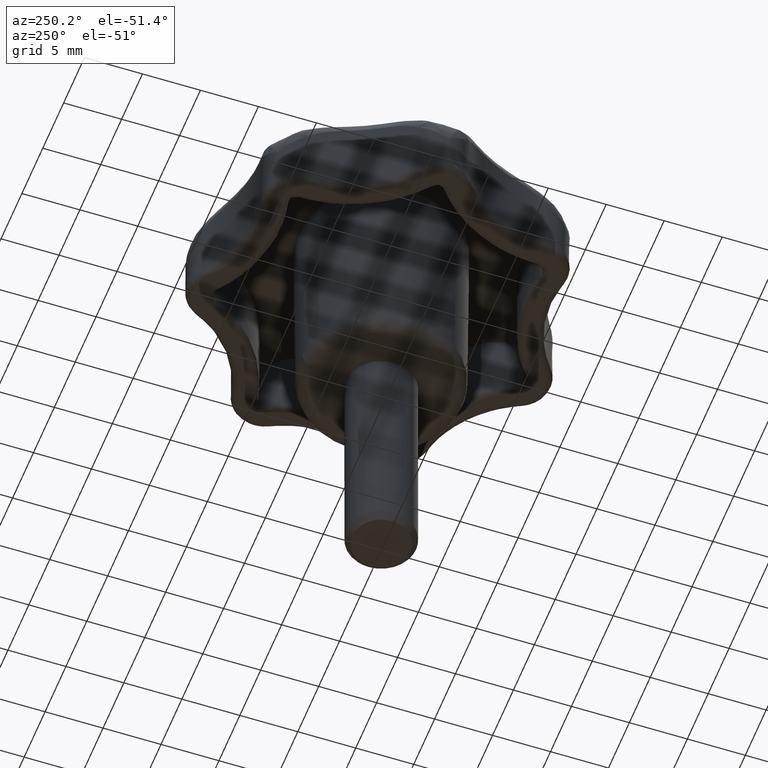
[diagram: clean part render]
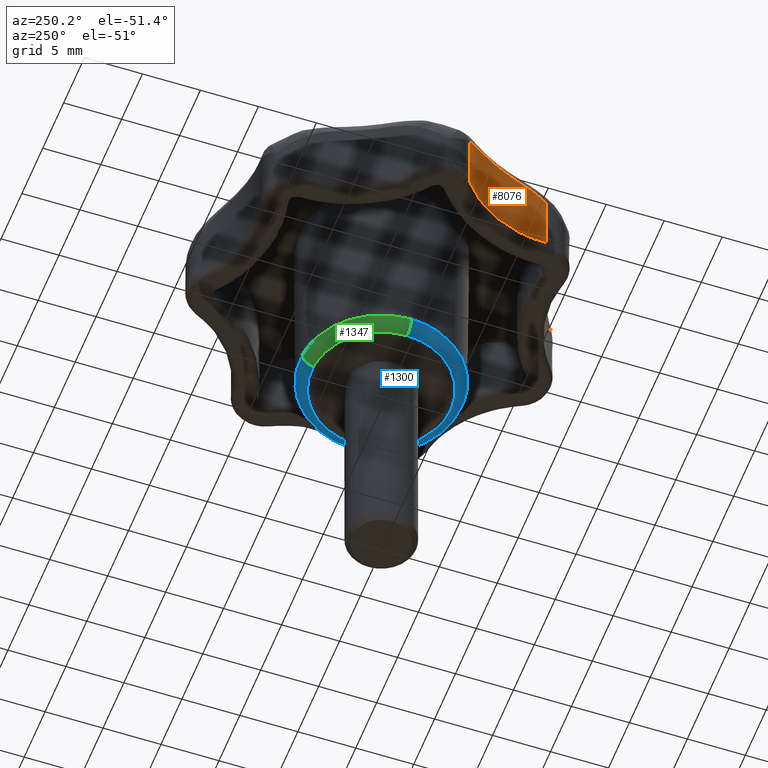
[diagram: same view with three faces highlighted in distinct colors, each labeled with its STEP entity id]
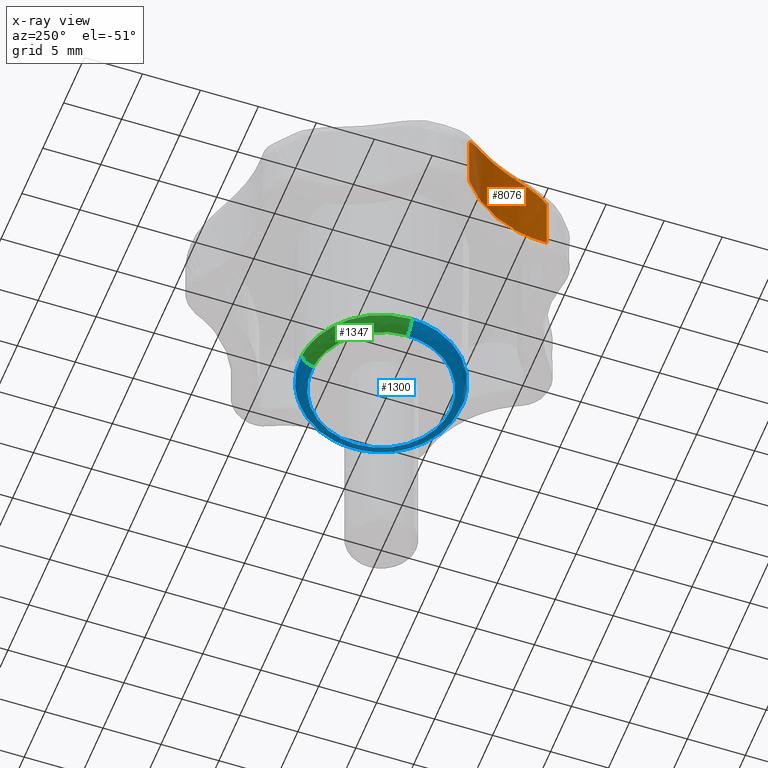
[diagram: x-ray of the same camera — body ghosted, the three highlighted faces saturated]
A machine part, auxiliary view with three faces highlighted in distinct colors.
The next image is the same camera in x-ray (body ghosted, the three faces saturated) — at least one of them is partly hidden behind the body in this view.
Their STEP definitions:

[orange] entity #8076 — the highlighted face is a freeform B-spline surface patch.
#3306=CARTESIAN_POINT('',(-11.029745739279459,-10.277883333098179,10.500000000000000));
#3307=VERTEX_POINT('',#3306);
#3431=CARTESIAN_POINT('',(-14.912507168994660,-2.215246249358240,10.500000000000000));
#3432=VERTEX_POINT('',#3431);
#3459=CARTESIAN_POINT('',(-14.912507168994660,-2.215246249358240,10.500000000000000));
#3460=CARTESIAN_POINT('',(-14.396320414952269,-2.614170561313141,10.500000000000000));
#3461=CARTESIAN_POINT('',(-13.601517495517729,-3.363703587868690,10.500000000000020));
#3462=CARTESIAN_POINT('',(-12.734983654140621,-4.499460412496485,10.499999999999959));
#3463=CARTESIAN_POINT('',(-12.030950182632040,-5.685190996557685,10.500000000000030));
#3464=CARTESIAN_POINT('',(-11.462219906707610,-7.051464885467566,10.500000000000069));
#3465=CARTESIAN_POINT('',(-11.090618001339569,-8.682122145656415,10.499999999999909));
#3466=CARTESIAN_POINT('',(-11.021680565799111,-9.746386973623885,10.500000000000099));
#3467=CARTESIAN_POINT('',(-11.029745739279459,-10.277883333098179,10.500000000000000));
#3468=B_SPLINE_CURVE_WITH_KNOTS('',3,(#3459,#3460,#3461,#3462,#3463,#3464,#3465,#3466,#3467),.UNSPECIFIED.,.F.,.U.,(4,1,1,1,1,1,4),(9.549217E-009,1.957097300897921,3.261831782556425,4.276623781948274,6.088744621064356,7.683423887059954,9.278093574410297),.UNSPECIFIED.);
#3469=EDGE_CURVE('',#3432,#3307,#3468,.T.);
#6943=CARTESIAN_POINT('',(-11.029745739279459,-10.277883333098179,15.546571991775100));
#6944=VERTEX_POINT('',#6943);
#7152=CARTESIAN_POINT('',(-14.912507168994660,-2.215246249358240,15.546571280850349));
#7153=VERTEX_POINT('',#7152);
#7164=CARTESIAN_POINT('',(-11.029745739279459,-10.277883333098179,15.546571991775100));
#7165=CARTESIAN_POINT('',(-11.028830874795490,-10.217319835432690,15.636566274154969));
#7166=CARTESIAN_POINT('',(-11.028393662594320,-10.151958221557029,15.723255099985691));
#7167=CARTESIAN_POINT('',(-11.029015073441309,-10.012566359798161,15.889006045202169));
#7168=CARTESIAN_POINT('',(-11.030070686234220,-9.939093129578540,15.967443842733029));
#7169=CARTESIAN_POINT('',(-11.036191792207800,-9.707997718288679,16.190172051211039));
#7170=CARTESIAN_POINT('',(-11.044198905737201,-9.539723701172090,16.321905740170781));
#7171=CARTESIAN_POINT('',(-11.065161153663970,-9.267740749330180,16.496254793449602));
#7172=CARTESIAN_POINT('',(-11.073646689771580,-9.173917759625063,16.550374412985221));
#7173=CARTESIAN_POINT('',(-11.093827732611310,-8.982525516829032,16.649991956975171));
#7174=CARTESIAN_POINT('',(-11.105459656285509,-8.885473780709218,16.695267105332391));
#7175=CARTESIAN_POINT('',(-11.145258576434500,-8.591036756753605,16.819168683386870));
#7176=CARTESIAN_POINT('',(-11.178344282570841,-8.390329635104564,16.885946288560511));
#7177=CARTESIAN_POINT('',(-11.238771656832860,-8.084798669973813,16.968104584701319));
#7178=CARTESIAN_POINT('',(-11.260747079709841,-7.982051090851025,16.992508014794840));
#7179=CARTESIAN_POINT('',(-11.308273959439520,-7.776024938453151,17.035971163535940));
#7180=CARTESIAN_POINT('',(-11.333657783402760,-7.673445452877012,17.054897973142971));
#7181=CARTESIAN_POINT('',(-11.414633791987679,-7.367098857663465,17.104828736527931));
#7182=CARTESIAN_POINT('',(-11.475046979296160,-7.164727689122318,17.129063919627121));
#7183=CARTESIAN_POINT('',(-11.608608596649770,-6.764066389506496,17.165509177455942));
#7184=CARTESIAN_POINT('',(-11.681755638744670,-6.565775089436023,17.177709785966339));
#7185=CARTESIAN_POINT('',(-11.840788627194110,-6.173511654188655,17.193608419562722));
#7186=CARTESIAN_POINT('',(-11.926672794491321,-5.979538980288464,17.197308591446848));
#7187=CARTESIAN_POINT('',(-12.065187905052660,-5.691926326083233,17.197304469960450));
#7188=CARTESIAN_POINT('',(-12.112975957834781,-5.596612461286411,17.196358064409729));
#7189=CARTESIAN_POINT('',(-12.211828985625290,-5.407108786853302,17.192471584509718));
#7190=CARTESIAN_POINT('',(-12.262957216899620,-5.312807116370783,17.189526781172191));
#7191=CARTESIAN_POINT('',(-12.420927855992760,-5.032340468228833,17.177325361555710));
#7192=CARTESIAN_POINT('',(-12.531619821505320,-4.849884590116159,17.164836185091119));
#7193=CARTESIAN_POINT('',(-12.763142504837560,-4.494154686616675,17.127766708371340));
#7194=CARTESIAN_POINT('',(-12.883976108133830,-4.320883039677636,17.103184352720540));
#7195=CARTESIAN_POINT('',(-13.135013983083180,-3.983930630558080,17.036322449596220));
#7196=CARTESIAN_POINT('',(-13.265223104245379,-3.820249932164534,16.994062672822800));
#7197=CARTESIAN_POINT('',(-13.466791487193570,-3.582395736954307,16.911390620770760));
#7198=CARTESIAN_POINT('',(-13.535207096235739,-3.504201623155788,16.880481121793469));
#7199=CARTESIAN_POINT('',(-13.671679247864070,-3.352919858234210,16.812107090194409));
#7200=CARTESIAN_POINT('',(-13.739960850557431,-3.279553974894359,16.774565349160699));
#7201=CARTESIAN_POINT('',(-13.944235749548930,-3.066356204596507,16.650719917944279));
#7202=CARTESIAN_POINT('',(-14.079689302734170,-2.933414463956532,16.553255211633338));
#7203=CARTESIAN_POINT('',(-14.278550306975490,-2.748158586803281,16.379385052873669));
#7204=CARTESIAN_POINT('',(-14.344441287939659,-2.688487608464036,16.316409365315579));
#7205=CARTESIAN_POINT('',(-14.471276511237329,-2.576437793987710,16.183246552197481));
#7206=CARTESIAN_POINT('',(-14.532483431125490,-2.523796429744055,16.112889598580999));
#7207=CARTESIAN_POINT('',(-14.708783750488980,-2.375490576011585,15.890310267582620));
#7208=CARTESIAN_POINT('',(-14.816611332826490,-2.289378995023747,15.726661258818959));
#7209=CARTESIAN_POINT('',(-14.912507168994660,-2.215246249358240,15.546571280850349));
#7210=B_SPLINE_CURVE_WITH_KNOTS('',3,(#7164,#7165,#7166,#7167,#7168,#7169,#7170,#7171,#7172,#7173,#7174,#7175,#7176,#7177,#7178,#7179,#7180,#7181,#7182,#7183,#7184,#7185,#7186,#7187,#7188,#7189,#7190,#7191,#7192,#7193,#7194,#7195,#7196,#7197,#7198,#7199,#7200,#7201,#7202,#7203,#7204,#7205,#7206,#7207,#7208,#7209),.UNSPECIFIED.,.F.,.U.,(4,2,2,2,2,2,2,2,2,2,2,2,2,2,2,2,2,2,2,2,2,2,4),(0.000000012593173,0.031249999999999,0.062499999999999,0.124999999999998,0.156249999999998,0.187499999999998,0.249999999999998,0.281249999999998,0.312499999999998,0.374999999999998,0.437499999999999,0.499999999999999,0.531249999999999,0.562499999999999,0.625000000000000,0.687500000000000,0.750000000000001,0.781250000000001,0.812500000000001,0.875000000000001,0.906250000000001,0.937500000000001,1.0),.UNSPECIFIED.);
#7211=EDGE_CURVE('',#6944,#7153,#7210,.T.);
#8048=CARTESIAN_POINT('',(-11.037125899789901,-10.539571197011259,17.364738491449931));
#8049=CARTESIAN_POINT('',(-11.037125899789901,-10.539571197011259,10.328381537713749));
#8050=CARTESIAN_POINT('',(-10.812020237767189,-5.090142046552180,17.364738491449931));
#8051=CARTESIAN_POINT('',(-10.812020237767189,-5.090142046552180,10.328381537713751));
#8052=CARTESIAN_POINT('',(-15.271606447328201,-1.950230986595035,17.364738491449934));
#8053=CARTESIAN_POINT('',(-15.271606447328201,-1.950230986595035,10.328381537713756));
#8061=(BOUNDED_SURFACE()B_SPLINE_SURFACE(1,2,((#8048,#8050,#8052),(#8049,#8051,#8053)),.UNSPECIFIED.,.F.,.F.,.U.)B_SPLINE_SURFACE_WITH_KNOTS((2,2),(3,3),(0.0,7.036356953736185),(0.0,10.198982490881971),.UNSPECIFIED.)GEOMETRIC_REPRESENTATION_ITEM()RATIONAL_B_SPLINE_SURFACE(((1.0,0.876384241774721,0.996520596947353),(1.0,0.876384241774721,0.996520596947353)))REPRESENTATION_ITEM('')SURFACE());
#8062=CARTESIAN_POINT('',(-14.912507168994660,-2.215246249358240,15.546571280850349));
#8063=CARTESIAN_POINT('',(-14.912507168994660,-2.215246249358240,10.500000000000000));
#8064=QUASI_UNIFORM_CURVE('',1,(#8062,#8063),.UNSPECIFIED.,.F.,.U.);
#8065=EDGE_CURVE('',#7153,#3432,#8064,.T.);
#8066=ORIENTED_EDGE('',*,*,#8065,.T.);
#8067=ORIENTED_EDGE('',*,*,#3469,.T.);
#8068=CARTESIAN_POINT('',(-11.029745739279459,-10.277883333098179,15.546571991775100));
#8069=CARTESIAN_POINT('',(-11.029745739279459,-10.277883333098179,10.500000000000000));
#8070=QUASI_UNIFORM_CURVE('',1,(#8068,#8069),.UNSPECIFIED.,.F.,.U.);
#8071=EDGE_CURVE('',#6944,#3307,#8070,.T.);
#8072=ORIENTED_EDGE('',*,*,#8071,.F.);
#8073=ORIENTED_EDGE('',*,*,#7211,.T.);
#8074=EDGE_LOOP('',(#8066,#8067,#8072,#8073));
#8075=FACE_OUTER_BOUND('',#8074,.T.);
#8076=ADVANCED_FACE('',(#8075),#8061,.F.);

[blue] entity #1300 — the highlighted face is a freeform B-spline surface patch.
#1004=CARTESIAN_POINT('',(-7.009346532137906,-0.088086683067751,0.990000999938502));
#1005=VERTEX_POINT('',#1004);
#1011=CARTESIAN_POINT('',(0.044011560081304,-7.009761835653135,0.990000999999893));
#1012=VERTEX_POINT('',#1011);
#1013=CARTESIAN_POINT('',(0.044011560081304,-7.009761835653135,0.990000999999893));
#1014=CARTESIAN_POINT('',(-0.327259516147825,-7.012118555084825,0.990000999998271));
#1015=CARTESIAN_POINT('',(-1.013018240262575,-6.961809875443648,0.990000999995025));
#1016=CARTESIAN_POINT('',(-1.990769810179260,-6.743333285383921,0.990000999989757));
#1017=CARTESIAN_POINT('',(-2.970697512445881,-6.380881706088863,0.990000999983856));
#1018=CARTESIAN_POINT('',(-3.833947858696139,-5.897866173226248,0.990000999977929));
#1019=CARTESIAN_POINT('',(-4.639982641624701,-5.280306060227638,0.990000999971682));
#1020=CARTESIAN_POINT('',(-5.269781020681241,-4.654665858341771,0.990000999966161));
#1021=CARTESIAN_POINT('',(-5.853122822753118,-3.894059717636087,0.990000999960265));
#1022=CARTESIAN_POINT('',(-6.353545875308731,-3.025877236812986,0.990000999954253));
#1023=CARTESIAN_POINT('',(-6.705954842517371,-2.117487215262767,0.990000999948728));
#1024=CARTESIAN_POINT('',(-6.943269781637847,-1.115486025520305,0.990000999943289));
#1025=CARTESIAN_POINT('',(-7.004533031734352,-0.473616830287401,0.990000999940200));
#1026=CARTESIAN_POINT('',(-7.009346532137906,-0.088086683067751,0.990000999938502));
#1027=B_SPLINE_CURVE_WITH_KNOTS('',3,(#1013,#1014,#1015,#1016,#1017,#1018,#1019,#1020,#1021,#1022,#1023,#1024,#1025,#1026),.UNSPECIFIED.,.F.,.U.,(4,1,1,1,1,1,1,1,1,1,1,4),(0.000000031240324,1.113831731728125,2.056320003634308,2.998809057157170,4.241180619405213,5.012304660595380,6.040439039017933,6.897245513999506,7.882576950302845,9.039262667068492,9.810388743024252,10.967065089115559),.UNSPECIFIED.);
#1028=EDGE_CURVE('',#1012,#1005,#1027,.T.);
#1030=CARTESIAN_POINT('',(7.009900000000000,0.0,0.990000999999893));
#1031=VERTEX_POINT('',#1030);
#1032=CARTESIAN_POINT('',(7.009900000000000,0.0,0.990000999999893));
#1033=CARTESIAN_POINT('',(7.009985120149969,-0.499808510791488,0.990001000002083));
#1034=CARTESIAN_POINT('',(6.910192776071818,-1.427974315679295,0.990001000005705));
#1035=CARTESIAN_POINT('',(6.483152912518270,-2.781921376152885,0.990001000009754));
#1036=CARTESIAN_POINT('',(5.889942713634015,-3.864811448001660,0.990001000011884));
#1037=CARTESIAN_POINT('',(5.212498895600441,-4.715845211747632,0.990001000012620));
#1038=CARTESIAN_POINT('',(4.503956187915340,-5.403200741511972,0.990001000012512));
#1039=CARTESIAN_POINT('',(3.633465740154701,-6.033386934691487,0.990001000011428));
#1040=CARTESIAN_POINT('',(2.695249096121297,-6.496464130980861,0.990001000009337));
#1041=CARTESIAN_POINT('',(1.499778261747799,-6.889949251321434,0.990001000005765));
#1042=CARTESIAN_POINT('',(0.643787145650208,-7.006191831373418,0.990001000002565));
#1043=CARTESIAN_POINT('',(0.044011560081304,-7.009761835653135,0.990000999999893));
#1044=B_SPLINE_CURVE_WITH_KNOTS('',3,(#1032,#1033,#1034,#1035,#1036,#1037,#1038,#1039,#1040,#1041,#1042,#1043),.UNSPECIFIED.,.F.,.U.,(4,1,1,1,1,1,1,1,1,4),(0.000000031243275,1.499405598363675,2.784623344417470,4.241205871929371,5.183682938024848,6.040475004124912,7.197172214472864,8.396710306964351,9.167842803276084,10.967130388001751),.UNSPECIFIED.);
#1045=EDGE_CURVE('',#1031,#1012,#1044,.T.);
#1047=CARTESIAN_POINT('',(4.670501578464534,5.227342822285378,0.990000751596052));
#1048=VERTEX_POINT('',#1047);
#1049=CARTESIAN_POINT('',(4.670501578464534,5.227342822285378,0.990000751596052));
#1050=CARTESIAN_POINT('',(4.911098390427255,5.012394656389010,0.990000761812351));
#1051=CARTESIAN_POINT('',(5.362526251573594,4.549188655823717,0.990000783827228));
#1052=CARTESIAN_POINT('',(5.992434475149363,3.693419508434316,0.990000824496782));
#1053=CARTESIAN_POINT('',(6.445351452988191,2.816330416844074,0.990000866176948));
#1054=CARTESIAN_POINT('',(6.774414129780408,1.872016901200394,0.990000911049566));
#1055=CARTESIAN_POINT('',(6.964219160002633,0.983251022386661,0.990000953281006));
#1056=CARTESIAN_POINT('',(7.009911150948082,0.322628874268362,0.990000984670480));
#1057=CARTESIAN_POINT('',(7.009900000000000,0.0,0.990000999999893));
#1058=B_SPLINE_CURVE_WITH_KNOTS('',3,(#1049,#1050,#1051,#1052,#1053,#1054,#1055,#1056,#1057),.UNSPECIFIED.,.F.,.U.,(4,1,1,1,1,1,4),(9.877584E-009,0.967887202464379,1.935783267727028,3.180213103294051,3.917650584733007,4.931639581828078,5.899526774414989),.UNSPECIFIED.);
#1059=EDGE_CURVE('',#1048,#1031,#1058,.T.);
#1155=CARTESIAN_POINT('',(-0.488823120539927,6.992835621416621,0.990000999938574));
#1156=VERTEX_POINT('',#1155);
#1157=CARTESIAN_POINT('',(-0.488823120539927,6.992835621416621,0.990000999938574));
#1158=CARTESIAN_POINT('',(0.078631450427460,7.032642598626783,0.990000971818848));
#1159=CARTESIAN_POINT('',(0.988390097049469,6.985130481315546,0.990000927119764));
#1160=CARTESIAN_POINT('',(2.080616250425052,6.711480118296652,0.990000874201200));
#1161=CARTESIAN_POINT('',(2.885648090182324,6.404750414728923,0.990000835558819));
#1162=CARTESIAN_POINT('',(3.742952710495366,5.962374881840137,0.990000794805677));
#1163=CARTESIAN_POINT('',(4.344234454871145,5.518916478791653,0.990000766681438));
#1164=CARTESIAN_POINT('',(4.670501578464534,5.227342822285378,0.990000751596052));
#1165=B_SPLINE_CURVE_WITH_KNOTS('',3,(#1157,#1158,#1159,#1160,#1161,#1162,#1163,#1164),.UNSPECIFIED.,.F.,.U.,(4,1,1,1,1,4),(8.645459E-009,1.706506037852845,2.712910570789049,3.369248606561552,4.288142162377346,5.600838273692876),.UNSPECIFIED.);
#1166=EDGE_CURVE('',#1156,#1048,#1165,.T.);
#1180=CARTESIAN_POINT('',(-0.488703213940483,6.991125850093616,1.059370202898726));
#1181=CARTESIAN_POINT('',(-0.288620388777677,7.005112312618823,1.059370202898726));
#1182=CARTESIAN_POINT('',(-0.088065145209623,7.007632696807257,1.059370202898726));
#1183=CARTESIAN_POINT('',(6.919567551597631,7.095697842016878,1.059370202898726));
#1184=CARTESIAN_POINT('',(7.007632696807257,0.088065145209623,1.059370202898726));
#1185=CARTESIAN_POINT('',(7.095697842016878,-6.919567551597631,1.059370202898726));
#1186=CARTESIAN_POINT('',(0.088065145209623,-7.007632696807257,1.059370202898726));
#1187=CARTESIAN_POINT('',(-6.919567551597631,-7.095697842016878,1.059370202898726));
#1188=CARTESIAN_POINT('',(-7.007632696807257,-0.088065145209624,1.059370202898726));
#1189=CARTESIAN_POINT('',(-0.493412724382980,7.058497578489563,-0.076165779095125));
#1190=CARTESIAN_POINT('',(-0.291401751158960,7.072618825050230,-0.076165779095125));
#1191=CARTESIAN_POINT('',(-0.088913806951870,7.075163497549677,-0.076165779095125));
#1192=CARTESIAN_POINT('',(6.986249690597808,7.164077304501549,-0.076165779095125));
#1193=CARTESIAN_POINT('',(7.075163497549677,0.088913806951871,-0.076165779095125));
#1194=CARTESIAN_POINT('',(7.164077304501549,-6.986249690597808,-0.076165779095125));
#1195=CARTESIAN_POINT('',(0.088913806951871,-7.075163497549677,-0.076165779095125));
#1196=CARTESIAN_POINT('',(-6.986249690597808,-7.164077304501549,-0.076165779095125));
#1197=CARTESIAN_POINT('',(-7.075163497549677,-0.088913806951871,-0.076165779095125));
#1198=CARTESIAN_POINT('',(-0.414277603583943,5.926433018881809,0.002387140740019));
#1199=CARTESIAN_POINT('',(-0.244665800423494,5.938289454469454,0.002387140740019));
#1200=CARTESIAN_POINT('',(-0.074653524421383,5.940426004203342,0.002387140740019));
#1201=CARTESIAN_POINT('',(5.865772479781957,6.015079528624724,0.002387140740019));
#1202=CARTESIAN_POINT('',(5.940426004203342,0.074653524421384,0.002387140740019));
#1203=CARTESIAN_POINT('',(6.015079528624725,-5.865772479781957,0.002387140740019));
#1204=CARTESIAN_POINT('',(0.074653524421384,-5.940426004203342,0.002387140740019));
#1205=CARTESIAN_POINT('',(-5.865772479781957,-6.015079528624725,0.002387140740019));
#1206=CARTESIAN_POINT('',(-5.940426004203342,-0.074653524421385,0.002387140740019));
#1214=(BOUNDED_SURFACE()B_SPLINE_SURFACE(2,2,((#1180,#1189,#1198),(#1181,#1190,#1199),(#1182,#1191,#1200),(#1183,#1192,#1201),(#1184,#1193,#1202),(#1185,#1194,#1203),(#1186,#1195,#1204),(#1187,#1196,#1205),(#1188,#1197,#1206)),.UNSPECIFIED.,.F.,.F.,.U.)B_SPLINE_SURFACE_WITH_KNOTS((3,2,2,2,3),(3,3),(0.0,0.464461269502571,12.076004080697000,23.687546891891429,35.299089703085862),(0.0,1.809500391282820),.UNSPECIFIED.)GEOMETRIC_REPRESENTATION_ITEM()RATIONAL_B_SPLINE_SURFACE(((0.891609605327431,0.589971542036972,0.895532575198096),(0.901440932372316,0.596476859097583,0.905407158842681),(0.912127156534916,0.603547855316210,0.916140401044533),(0.644971297690243,0.426772781264689,0.647809090097553),(0.912127156534916,0.603547855316210,0.916140401044533),(0.644971297690243,0.426772781264689,0.647809090097553),(0.912127156534916,0.603547855316210,0.916140401044533),(0.644971297690243,0.426772781264689,0.647809090097553),(0.912127156534916,0.603547855316210,0.916140401044533)))REPRESENTATION_ITEM('')SURFACE());
#1215=CARTESIAN_POINT('',(-0.419093355791268,5.995319824453453,2.076003E-016));
#1216=VERTEX_POINT('',#1215);
#1217=CARTESIAN_POINT('',(6.009950000000000,0.0,0.0));
#1218=VERTEX_POINT('',#1217);
#1219=CARTESIAN_POINT('',(-0.419093355791268,5.995319824453453,2.076003E-016));
#1220=CARTESIAN_POINT('',(0.041963576204192,6.027658735736019,1.824017E-016));
#1221=CARTESIAN_POINT('',(0.790748663892478,5.993327005080340,1.434147E-016));
#1222=CARTESIAN_POINT('',(1.843040897266265,5.745377713804174,9.307899E-017));
#1223=CARTESIAN_POINT('',(2.762347715456882,5.372642345902687,5.258655E-017));
#1224=CARTESIAN_POINT('',(3.570006133447139,4.864639764615458,2.103839E-017));
#1225=CARTESIAN_POINT('',(4.249685698343916,4.274156982898997,-1.875848E-018));
#1226=CARTESIAN_POINT('',(4.744227193271389,3.715014192394286,-1.566016E-017));
#1227=CARTESIAN_POINT('',(5.222836713853598,3.014264419270256,-2.544036E-017));
#1228=CARTESIAN_POINT('',(5.604754901270792,2.239936536770875,-2.844622E-017));
#1229=CARTESIAN_POINT('',(5.926019079098484,1.193926261596783,-2.217258E-017));
#1230=CARTESIAN_POINT('',(6.010047877291910,0.449351161456634,-1.002719E-017));
#1231=CARTESIAN_POINT('',(6.009950000000000,0.0,0.0));
#1232=B_SPLINE_CURVE_WITH_KNOTS('',3,(#1219,#1220,#1221,#1222,#1223,#1224,#1225,#1226,#1227,#1228,#1229,#1230,#1231),.UNSPECIFIED.,.F.,.U.,(4,1,1,1,1,1,1,1,1,1,4),(0.000000036061728,1.386535896357993,2.233874234265277,3.235267346852263,4.352216857643965,5.083976141021815,5.931312373579304,6.586070623263497,7.625985705820384,8.511832297412624,9.859858014295448),.UNSPECIFIED.);
#1233=EDGE_CURVE('',#1216,#1218,#1232,.T.);
#1234=ORIENTED_EDGE('',*,*,#1233,.F.);
#1235=CARTESIAN_POINT('',(-0.488823120539927,6.992835621416621,0.990000999938574));
#1236=CARTESIAN_POINT('',(-0.488763129514513,6.991977422711361,0.900581812811698));
#1237=CARTESIAN_POINT('',(-0.487197971395623,6.969587128531673,0.746365847476047));
#1238=CARTESIAN_POINT('',(-0.480719514172715,6.876909870257018,0.510805404957187));
#1239=CARTESIAN_POINT('',(-0.471402112729383,6.743620231910800,0.323534093052119));
#1240=CARTESIAN_POINT('',(-0.458411474675641,6.557783283823707,0.164338425991152));
#1241=CARTESIAN_POINT('',(-0.441764172523846,6.319636103273225,0.037633233857870));
#1242=CARTESIAN_POINT('',(-0.427597229623659,6.116971582724676,-0.000087093514779));
#1243=CARTESIAN_POINT('',(-0.419093355791268,5.995319824453453,2.076003E-016));
#1244=B_SPLINE_CURVE_WITH_KNOTS('',3,(#1235,#1236,#1237,#1238,#1239,#1240,#1241,#1242,#1243),.UNSPECIFIED.,.F.,.U.,(4,1,1,1,1,1,4),(0.000000067788479,0.268263762194840,0.463373757166351,0.756038626293501,0.951132944744520,1.195016280365100,1.560835823955441),.UNSPECIFIED.);
#1245=EDGE_CURVE('',#1156,#1216,#1244,.T.);
#1246=ORIENTED_EDGE('',*,*,#1245,.F.);
#1247=ORIENTED_EDGE('',*,*,#1166,.T.);
#1248=ORIENTED_EDGE('',*,*,#1059,.T.);
#1249=ORIENTED_EDGE('',*,*,#1045,.T.);
#1250=ORIENTED_EDGE('',*,*,#1028,.T.);
#1251=CARTESIAN_POINT('',(-6.009475481328942,-0.075521271578736,1.873205E-016));
#1252=VERTEX_POINT('',#1251);
#1253=CARTESIAN_POINT('',(-7.009346532137906,-0.088086683067751,0.990000999938502));
#1254=CARTESIAN_POINT('',(-7.008149825548581,-0.088071644012757,0.851767469997722));
#1255=CARTESIAN_POINT('',(-6.963092540225963,-0.087505407660624,0.649161288525807));
#1256=CARTESIAN_POINT('',(-6.804257222908784,-0.085509319141214,0.373003078851685));
#1257=CARTESIAN_POINT('',(-6.605001337097278,-0.083005264048505,0.175699297920699));
#1258=CARTESIAN_POINT('',(-6.318328327367533,-0.079402635167502,0.032514199033229));
#1259=CARTESIAN_POINT('',(-6.115150989434223,-0.076849299066646,-0.000047444165542));
#1260=CARTESIAN_POINT('',(-6.009475481328942,-0.075521271578736,1.873205E-016));
#1261=B_SPLINE_CURVE_WITH_KNOTS('',3,(#1253,#1254,#1255,#1256,#1257,#1258,#1259,#1260),.UNSPECIFIED.,.F.,.U.,(4,1,1,1,1,4),(0.000000067788217,0.414598419809839,0.609702128264269,0.951132945696433,1.243791127839821,1.560835825517638),.UNSPECIFIED.);
#1262=EDGE_CURVE('',#1005,#1252,#1261,.T.);
#1263=ORIENTED_EDGE('',*,*,#1262,.T.);
#1264=CARTESIAN_POINT('',(0.037727695427934,-6.009831580293885,0.0));
#1265=VERTEX_POINT('',#1264);
#1266=CARTESIAN_POINT('',(0.037727695427934,-6.009831580293885,0.0));
#1267=CARTESIAN_POINT('',(-0.256094991785944,-6.011687786670141,4.579465E-018));
#1268=CARTESIAN_POINT('',(-0.880760375705938,-5.969723613816926,1.503081E-017));
#1269=CARTESIAN_POINT('',(-1.839233955395176,-5.752508592523546,3.344862E-017));
#1270=CARTESIAN_POINT('',(-2.667731669423914,-5.408028895025301,5.181103E-017));
#1271=CARTESIAN_POINT('',(-3.395616544843166,-4.977038512828004,6.994351E-017));
#1272=CARTESIAN_POINT('',(-4.085739998737163,-4.444996033299453,8.905842E-017));
#1273=CARTESIAN_POINT('',(-4.772392961130710,-3.706453649849427,1.113368E-016));
#1274=CARTESIAN_POINT('',(-5.288521371310540,-2.898840490828857,1.320169E-016));
#1275=CARTESIAN_POINT('',(-5.662772018582629,-2.072087395923369,1.507701E-016));
#1276=CARTESIAN_POINT('',(-5.928301916555350,-1.164199508777683,1.690824E-016));
#1277=CARTESIAN_POINT('',(-6.004750392116834,-0.455025658960338,1.813325E-016));
#1278=CARTESIAN_POINT('',(-6.009475481328942,-0.075521271578736,1.873205E-016));
#1279=B_SPLINE_CURVE_WITH_KNOTS('',3,(#1266,#1267,#1268,#1269,#1270,#1271,#1272,#1273,#1274,#1275,#1276,#1277,#1278),.UNSPECIFIED.,.F.,.U.,(4,1,1,1,1,1,1,1,1,1,4),(0.000000031413396,0.881486599610612,1.873178323442920,2.938324196337981,3.562723944640966,4.407494843564257,5.546079474173986,6.574488843461611,7.272344581344648,8.264032752619050,9.402626701660067),.UNSPECIFIED.);
#1280=EDGE_CURVE('',#1265,#1252,#1279,.T.);
#1281=ORIENTED_EDGE('',*,*,#1280,.F.);
#1282=CARTESIAN_POINT('',(6.009950000000000,0.0,0.0));
#1283=CARTESIAN_POINT('',(6.010132023757199,-0.526475238444775,-8.206947E-018));
#1284=CARTESIAN_POINT('',(5.914414828003946,-1.248723734340363,-1.796082E-017));
#1285=CARTESIAN_POINT('',(5.613651314685831,-2.182089958972003,-2.778919E-017));
#1286=CARTESIAN_POINT('',(5.340651656699380,-2.785714105423668,-3.291454E-017));
#1287=CARTESIAN_POINT('',(4.911447645604521,-3.500404443221480,-3.732117E-017));
#1288=CARTESIAN_POINT('',(4.382854616116306,-4.148107148117943,-3.912539E-017));
#1289=CARTESIAN_POINT('',(3.743165434272681,-4.721083285587201,-3.802303E-017));
#1290=CARTESIAN_POINT('',(3.068878817771120,-5.190625516775634,-3.476631E-017));
#1291=CARTESIAN_POINT('',(2.312252967627961,-5.572772225531275,-2.885654E-017));
#1292=CARTESIAN_POINT('',(1.273630413778987,-5.911097879943656,-1.784185E-017));
#1293=CARTESIAN_POINT('',(0.515210654368824,-6.006956539210953,-7.442697E-018));
#1294=CARTESIAN_POINT('',(0.037727695427934,-6.009831580293885,0.0));
#1295=B_SPLINE_CURVE_WITH_KNOTS('',3,(#1282,#1283,#1284,#1285,#1286,#1287,#1288,#1289,#1290,#1291,#1292,#1293,#1294),.UNSPECIFIED.,.F.,.U.,(4,1,1,1,1,1,1,1,1,1,4),(0.000000031417633,1.579355899823843,2.167027397798213,2.938345249993359,3.562749472329170,4.664636792457076,5.435918354001443,6.133782557511166,7.125479185624650,7.970258573822227,9.402694073051633),.UNSPECIFIED.);
#1296=EDGE_CURVE('',#1218,#1265,#1295,.T.);
#1297=ORIENTED_EDGE('',*,*,#1296,.F.);
#1298=EDGE_LOOP('',(#1234,#1246,#1247,#1248,#1249,#1250,#1263,#1281,#1297));
#1299=FACE_OUTER_BOUND('',#1298,.T.);
#1300=ADVANCED_FACE('',(#1299),#1214,.T.);

[green] entity #1347 — the highlighted face is a freeform B-spline surface patch.
#982=CARTESIAN_POINT('',(-2.837544167652939,6.409917399598444,0.990000608527300));
#983=VERTEX_POINT('',#982);
#989=CARTESIAN_POINT('',(-7.009900000000000,0.0,0.990000999999893));
#990=VERTEX_POINT('',#989);
#991=CARTESIAN_POINT('',(-7.009900000000000,0.0,0.990000999999893));
#992=CARTESIAN_POINT('',(-7.009943534231018,0.421342233384683,0.990000974269856));
#993=CARTESIAN_POINT('',(-6.943208365364920,1.158673236313285,0.990000929242763));
#994=CARTESIAN_POINT('',(-6.663410400773020,2.264040942734888,0.990000861738820));
#995=CARTESIAN_POINT('',(-6.250518950737315,3.237298333141068,0.990000802301195));
#996=CARTESIAN_POINT('',(-5.600859643973688,4.275937967395371,0.990000738868651));
#997=CARTESIAN_POINT('',(-4.805653051247512,5.155980356620826,0.990000685119771));
#998=CARTESIAN_POINT('',(-3.834240902073332,5.903102843739844,0.990000639486236));
#999=CARTESIAN_POINT('',(-3.184304942908419,6.256442115249044,0.990000617902803));
#1000=CARTESIAN_POINT('',(-2.837544167652939,6.409917399598444,0.990000608527300));
#1001=B_SPLINE_CURVE_WITH_KNOTS('',3,(#991,#992,#993,#994,#995,#996,#997,#998,#999,#1000),.UNSPECIFIED.,.F.,.U.,(4,1,1,1,1,1,1,4),(0.000000016162220,1.264022873488172,2.212049411980695,3.412880749823413,4.424092281010726,5.877725835976989,6.952156589494572,8.089775234093120),.UNSPECIFIED.);
#1002=EDGE_CURVE('',#990,#983,#1001,.T.);
#1004=CARTESIAN_POINT('',(-7.009346532137906,-0.088086683067751,0.990000999938502));
#1005=VERTEX_POINT('',#1004);
#1006=CARTESIAN_POINT('',(-7.009346532137906,-0.088086683067751,0.990000999938502));
#1007=CARTESIAN_POINT('',(-7.009900000000000,0.0,0.990000999999893));
#1008=QUASI_UNIFORM_CURVE('',1,(#1006,#1007),.UNSPECIFIED.,.F.,.U.);
#1009=EDGE_CURVE('',#1005,#990,#1008,.T.);
#1155=CARTESIAN_POINT('',(-0.488823120539927,6.992835621416621,0.990000999938574));
#1156=VERTEX_POINT('',#1155);
#1168=CARTESIAN_POINT('',(-2.837544167652939,6.409917399598444,0.990000608527300));
#1169=CARTESIAN_POINT('',(-2.582714034018394,6.522728957832165,0.990000651562007));
#1170=CARTESIAN_POINT('',(-1.821794186810330,6.806657174702560,0.990000779457080));
#1171=CARTESIAN_POINT('',(-1.019584274409156,6.955857591661373,0.990000912572925));
#1172=CARTESIAN_POINT('',(-0.488823120539927,6.992835621416621,0.990000999938574));
#1173=B_SPLINE_CURVE_WITH_KNOTS('',3,(#1168,#1169,#1170,#1171,#1172),.UNSPECIFIED.,.F.,.U.,(4,1,4),(6.665042E-010,0.836058135558445,2.432169088845639),.UNSPECIFIED.);
#1174=EDGE_CURVE('',#983,#1156,#1173,.T.);
#1215=CARTESIAN_POINT('',(-0.419093355791268,5.995319824453453,2.076003E-016));
#1216=VERTEX_POINT('',#1215);
#1235=CARTESIAN_POINT('',(-0.488823120539927,6.992835621416621,0.990000999938574));
#1236=CARTESIAN_POINT('',(-0.488763129514513,6.991977422711361,0.900581812811698));
#1237=CARTESIAN_POINT('',(-0.487197971395623,6.969587128531673,0.746365847476047));
#1238=CARTESIAN_POINT('',(-0.480719514172715,6.876909870257018,0.510805404957187));
#1239=CARTESIAN_POINT('',(-0.471402112729383,6.743620231910800,0.323534093052119));
#1240=CARTESIAN_POINT('',(-0.458411474675641,6.557783283823707,0.164338425991152));
#1241=CARTESIAN_POINT('',(-0.441764172523846,6.319636103273225,0.037633233857870));
#1242=CARTESIAN_POINT('',(-0.427597229623659,6.116971582724676,-0.000087093514779));
#1243=CARTESIAN_POINT('',(-0.419093355791268,5.995319824453453,2.076003E-016));
#1244=B_SPLINE_CURVE_WITH_KNOTS('',3,(#1235,#1236,#1237,#1238,#1239,#1240,#1241,#1242,#1243),.UNSPECIFIED.,.F.,.U.,(4,1,1,1,1,1,4),(0.000000067788479,0.268263762194840,0.463373757166351,0.756038626293501,0.951132944744520,1.195016280365100,1.560835823955441),.UNSPECIFIED.);
#1245=EDGE_CURVE('',#1156,#1216,#1244,.T.);
#1251=CARTESIAN_POINT('',(-6.009475481328942,-0.075521271578736,1.873205E-016));
#1252=VERTEX_POINT('',#1251);
#1253=CARTESIAN_POINT('',(-7.009346532137906,-0.088086683067751,0.990000999938502));
#1254=CARTESIAN_POINT('',(-7.008149825548581,-0.088071644012757,0.851767469997722));
#1255=CARTESIAN_POINT('',(-6.963092540225963,-0.087505407660624,0.649161288525807));
#1256=CARTESIAN_POINT('',(-6.804257222908784,-0.085509319141214,0.373003078851685));
#1257=CARTESIAN_POINT('',(-6.605001337097278,-0.083005264048505,0.175699297920699));
#1258=CARTESIAN_POINT('',(-6.318328327367533,-0.079402635167502,0.032514199033229));
#1259=CARTESIAN_POINT('',(-6.115150989434223,-0.076849299066646,-0.000047444165542));
#1260=CARTESIAN_POINT('',(-6.009475481328942,-0.075521271578736,1.873205E-016));
#1261=B_SPLINE_CURVE_WITH_KNOTS('',3,(#1253,#1254,#1255,#1256,#1257,#1258,#1259,#1260),.UNSPECIFIED.,.F.,.U.,(4,1,1,1,1,4),(0.000000067788217,0.414598419809839,0.609702128264269,0.951132945696433,1.243791127839821,1.560835825517638),.UNSPECIFIED.);
#1262=EDGE_CURVE('',#1005,#1252,#1261,.T.);
#1301=CARTESIAN_POINT('',(-7.007632696890152,-0.088065145210664,1.059370201504849));
#1302=CARTESIAN_POINT('',(-7.090797319705205,6.529616897658706,1.059370201504849));
#1303=CARTESIAN_POINT('',(-0.488703599782354,6.991125823205064,1.059370201504849));
#1304=CARTESIAN_POINT('',(-7.075163493962193,-0.088913806906786,-0.076165745525357));
#1305=CARTESIAN_POINT('',(-7.159129553369287,6.592541176476806,-0.076165745525357));
#1306=CARTESIAN_POINT('',(-0.493413113687089,7.058497547679363,-0.076165745525357));
#1307=CARTESIAN_POINT('',(-5.940426033353819,-0.074653524787718,0.002387138722059));
#1308=CARTESIAN_POINT('',(-6.010925346287817,5.535208234286084,0.002387138722059));
#1309=CARTESIAN_POINT('',(-0.414277932693185,5.926433025099877,0.002387138722059));
#1317=(BOUNDED_SURFACE()B_SPLINE_SURFACE(2,2,((#1301,#1304,#1307),(#1302,#1305,#1308),(#1303,#1306,#1309)),.UNSPECIFIED.,.F.,.F.,.U.)B_SPLINE_SURFACE_WITH_KNOTS((3,3),(3,3),(0.0,11.144021879877201),(0.0,1.809500354413213),.UNSPECIFIED.)GEOMETRIC_REPRESENTATION_ITEM()RATIONAL_B_SPLINE_SURFACE(((0.912127155962471,0.603547861622565,0.916140388855221),(0.655657531632543,0.433843788759900,0.658542333773480),(0.891609586016076,0.589971535793552,0.895532544448682)))REPRESENTATION_ITEM('')SURFACE());
#1318=CARTESIAN_POINT('',(-6.009950000000000,0.0,0.0));
#1319=VERTEX_POINT('',#1318);
#1320=CARTESIAN_POINT('',(-6.009950000000000,0.0,0.0));
#1321=CARTESIAN_POINT('',(-6.009966501987481,0.328885366532123,-6.127536E-022));
#1322=CARTESIAN_POINT('',(-5.950059034291114,1.057146057332237,2.223878E-018));
#1323=CARTESIAN_POINT('',(-5.685304788761972,2.037193209507290,1.205476E-017));
#1324=CARTESIAN_POINT('',(-5.229863035996663,3.020146340970269,2.896627E-017));
#1325=CARTESIAN_POINT('',(-4.707002864099839,3.778014434416795,4.838117E-017));
#1326=CARTESIAN_POINT('',(-4.008242624399175,4.509931192076483,7.432762E-017));
#1327=CARTESIAN_POINT('',(-3.260388862661121,5.085701647907509,1.020970E-016));
#1328=CARTESIAN_POINT('',(-2.340552433049206,5.564838792431486,1.362525E-016));
#1329=CARTESIAN_POINT('',(-1.399577083488221,5.872522130066818,1.711929E-016));
#1330=CARTESIAN_POINT('',(-0.747184140811343,5.972407670799434,1.954176E-016));
#1331=CARTESIAN_POINT('',(-0.419093355791268,5.995319824453453,2.076003E-016));
#1332=B_SPLINE_CURVE_WITH_KNOTS('',3,(#1320,#1321,#1322,#1323,#1324,#1325,#1326,#1327,#1328,#1329,#1330,#1331),.UNSPECIFIED.,.F.,.U.,(4,1,1,1,1,1,1,1,1,4),(5.010582E-009,0.986664464185725,2.184779233018578,3.030503201291476,4.228608191351183,4.933372538765824,6.060996581484930,7.047678549442487,8.034354004156590,9.021025313594798),.UNSPECIFIED.);
#1333=EDGE_CURVE('',#1319,#1216,#1332,.T.);
#1334=ORIENTED_EDGE('',*,*,#1333,.F.);
#1335=CARTESIAN_POINT('',(-6.009475481328942,-0.075521271578736,1.873205E-016));
#1336=CARTESIAN_POINT('',(-6.009950000000000,0.0,0.0));
#1337=QUASI_UNIFORM_CURVE('',1,(#1335,#1336),.UNSPECIFIED.,.F.,.U.);
#1338=EDGE_CURVE('',#1252,#1319,#1337,.T.);
#1339=ORIENTED_EDGE('',*,*,#1338,.F.);
#1340=ORIENTED_EDGE('',*,*,#1262,.F.);
#1341=ORIENTED_EDGE('',*,*,#1009,.T.);
#1342=ORIENTED_EDGE('',*,*,#1002,.T.);
#1343=ORIENTED_EDGE('',*,*,#1174,.T.);
#1344=ORIENTED_EDGE('',*,*,#1245,.T.);
#1345=EDGE_LOOP('',(#1334,#1339,#1340,#1341,#1342,#1343,#1344));
#1346=FACE_OUTER_BOUND('',#1345,.T.);
#1347=ADVANCED_FACE('',(#1346),#1317,.T.);